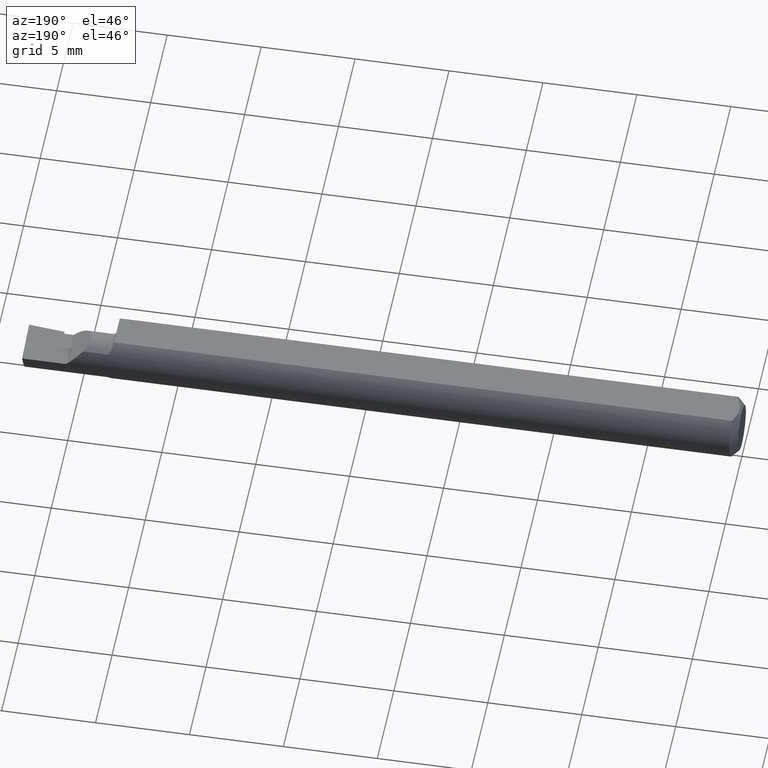
[diagram: clean part render]
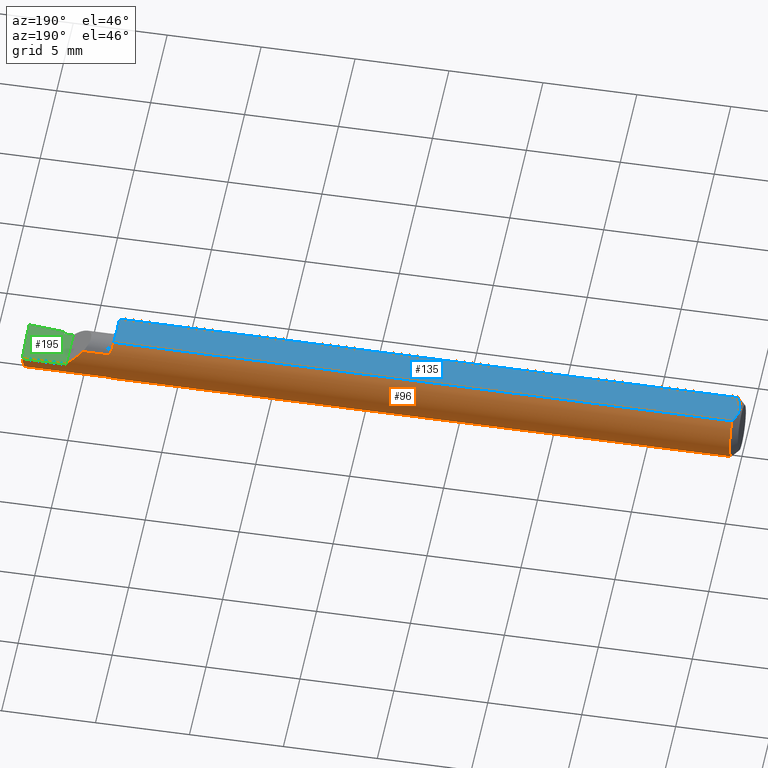
[diagram: same view with three faces highlighted in distinct colors, each labeled with its STEP entity id]
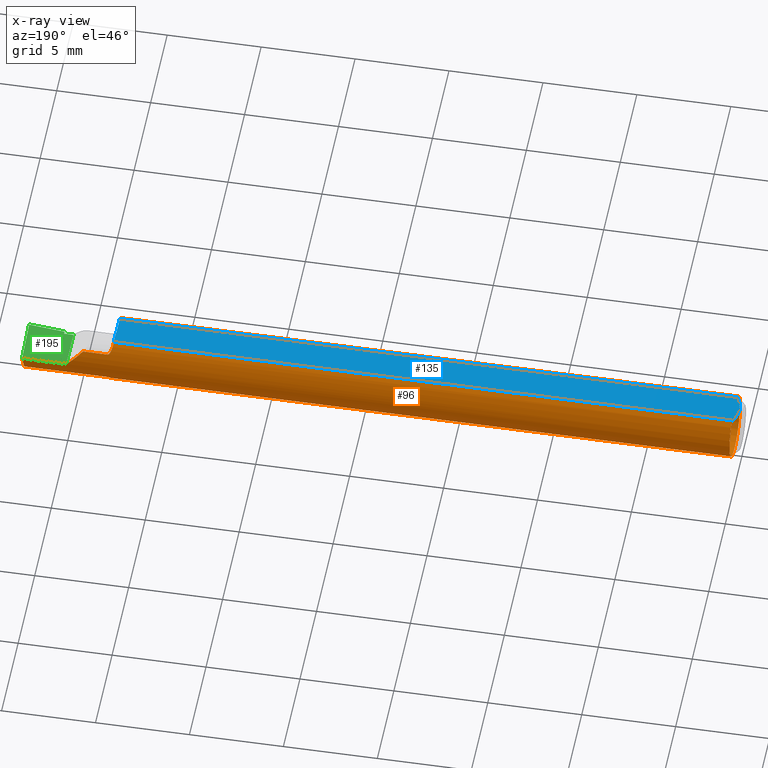
[diagram: x-ray of the same camera — body ghosted, the three highlighted faces saturated]
A machine part, auxiliary view with three faces highlighted in distinct colors.
The next image is the same camera in x-ray (body ghosted, the three faces saturated) — at least one of them is partly hidden behind the body in this view.
Their STEP definitions:

[orange] entity #96 — the highlighted cylindrical surface (edge-blend (fillet) strip) has radius 1.5837 mm, axis along (-1, -0, -0).
#16 = ORIENTED_EDGE ( 'NONE', *, *, #641, .T. ) ;
#20 = DIRECTION ( 'NONE',  ( -1.000000000000000000, -0.000000000000000000, -0.000000000000000000 ) ) ;
#23 = EDGE_CURVE ( 'NONE', #385, #463, #404, .T. ) ;
#24 = CARTESIAN_POINT ( 'NONE',  ( 0.000000000000000000, 0.000000000000000000, 0.000000000000000000 ) ) ;
#30 = DIRECTION ( 'NONE',  ( -1.000000000000000000, 2.845674993400274571E-18, -0.000000000000000000 ) ) ;
#34 = ORIENTED_EDGE ( 'NONE', *, *, #610, .T. ) ;
#40 = AXIS2_PLACEMENT_3D ( 'NONE', #541, #141, #345 ) ;
#50 = CARTESIAN_POINT ( 'NONE',  ( 1.405000000000000249, 0.06234999999999984999, 1.163414459189988826E-17 ) ) ;
#52 = ORIENTED_EDGE ( 'NONE', *, *, #54, .T. ) ;
#53 = DIRECTION ( 'NONE',  ( -1.000000000000000000, -0.000000000000000000, -0.000000000000000000 ) ) ;
#54 = EDGE_CURVE ( 'NONE', #66, #505, #133, .T. ) ;
#58 = CARTESIAN_POINT ( 'NONE',  ( 1.320000000000000062, 0.05267366071428519758, 0.03336177403790670931 ) ) ;
#61 = LINE ( 'NONE', #312, #597 ) ;
#66 = VERTEX_POINT ( 'NONE', #278 ) ;
#74 = VECTOR ( 'NONE', #468, 39.37007874015748143 ) ;
#75 = VECTOR ( 'NONE', #53, 39.37007874015748143 ) ;
#78 = CARTESIAN_POINT ( 'NONE',  ( 1.318537702541799472, 0.05267366071428532942, -0.03336177403790685503 ) ) ;
#79 = FACE_OUTER_BOUND ( 'NONE', #427, .T. ) ;
#92 = CARTESIAN_POINT ( 'NONE',  ( 1.372500000000000275, 0.05267366071428571800, 0.03336177403790620971 ) ) ;
#96 = ADVANCED_FACE ( 'NONE', ( #79 ), #493, .T. ) ;
#107 = EDGE_CURVE ( 'NONE', #185, #438, #525, .T. ) ;
#114 = CARTESIAN_POINT ( 'NONE',  ( 1.316045261487122531, 0.05110091261051565720, 0.03573737896485319754 ) ) ;
#119 = ORIENTED_EDGE ( 'NONE', *, *, #338, .T. ) ;
#125 = B_SPLINE_CURVE_WITH_KNOTS ( 'NONE', 3,
 ( #647, #644, #160, #377, #319, #418, #114, #361, #591, #593 ),
 .UNSPECIFIED., .F., .F.,
 ( 4, 2, 2, 2, 4 ),
 ( 3.634625588760946625E-07, 0.0003783602501879811749, 0.0005673586440025336040, 0.0006618578409098096289, 0.0007563570378170856538 ),
 .UNSPECIFIED. ) ;
#133 = LINE ( 'NONE', #287, #676 ) ;
#134 = ORIENTED_EDGE ( 'NONE', *, *, #450, .T. ) ;
#141 = DIRECTION ( 'NONE',  ( -1.000000000000000000, -0.000000000000000000, -0.000000000000000000 ) ) ;
#151 = ORIENTED_EDGE ( 'NONE', *, *, #344, .T. ) ;
#152 = CARTESIAN_POINT ( 'NONE',  ( 1.317380869089463058, 0.05205930255399779383, -0.03433183488607109701 ) ) ;
#160 = CARTESIAN_POINT ( 'NONE',  ( 1.311047180432317827, 0.04185659023926306677, 0.04646513869620316761 ) ) ;
#162 = VECTOR ( 'NONE', #503, 39.37007874015748143 ) ;
#170 = ORIENTED_EDGE ( 'NONE', *, *, #662, .T. ) ;
#175 = DIRECTION ( 'NONE',  ( 0.000000000000000000, 0.000000000000000000, 1.000000000000000000 ) ) ;
#179 = ORIENTED_EDGE ( 'NONE', *, *, #237, .T. ) ;
#185 = VERTEX_POINT ( 'NONE', #413 ) ;
#202 = CARTESIAN_POINT ( 'NONE',  ( 1.497374644593940651, 0.06234999999999984999, 4.356084699862640356E-19 ) ) ;
#211 = LINE ( 'NONE', #467, #75 ) ;
#237 = EDGE_CURVE ( 'NONE', #381, #272, #671, .T. ) ;
#238 = AXIS2_PLACEMENT_3D ( 'NONE', #372, #375, #535 ) ;
#241 = DIRECTION ( 'NONE',  ( 0.000000000000000000, 0.000000000000000000, 1.000000000000000000 ) ) ;
#249 = CARTESIAN_POINT ( 'NONE',  ( 1.310000000000000497, 0.03531759654985763136, -0.05169891940248810130 ) ) ;
#263 = CARTESIAN_POINT ( 'NONE',  ( 1.310000000000000275, 0.03032991071428571203, -0.05447585718521057163 ) ) ;
#266 = CARTESIAN_POINT ( 'NONE',  ( 0.01500000000000185039, -0.03386738844380016850, 0.05235000000000000070 ) ) ;
#272 = VERTEX_POINT ( 'NONE', #353 ) ;
#278 = CARTESIAN_POINT ( 'NONE',  ( 1.493683825247659858, 0.05267366071428571800, -0.03336177403790620971 ) ) ;
#287 = CARTESIAN_POINT ( 'NONE',  ( 1.372500000000000275, 0.05267366071428571800, -0.03336177403790620971 ) ) ;
#291 = CARTESIAN_POINT ( 'NONE',  ( 0.000000000000000000, 0.03386738844375223462, 0.05234999999999997988 ) ) ;
#309 = CARTESIAN_POINT ( 'NONE',  ( 1.310000000000000275, 0.03032991071428571203, -0.05447585718521057163 ) ) ;
#312 = CARTESIAN_POINT ( 'NONE',  ( 2.249639673992802012E-32, 0.06234999999999999570, 1.836970198721035850E-16 ) ) ;
#313 = ORIENTED_EDGE ( 'NONE', *, *, #554, .F. ) ;
#316 = CARTESIAN_POINT ( 'NONE',  ( 0.01500000000000000465, 0.03386738844375223462, 0.05234999999999997988 ) ) ;
#319 = CARTESIAN_POINT ( 'NONE',  ( 1.313772805890642825, 0.04842073308978434021, 0.03934539127329839125 ) ) ;
#338 = EDGE_CURVE ( 'NONE', #391, #668, #343, .T. ) ;
#343 = LINE ( 'NONE', #291, #162 ) ;
#344 = EDGE_CURVE ( 'NONE', #645, #66, #400, .T. ) ;
#345 = DIRECTION ( 'NONE',  ( 0.000000000000000000, 0.000000000000000000, 1.000000000000000000 ) ) ;
#353 = CARTESIAN_POINT ( 'NONE',  ( 1.371638225962093394, 0.05267366071428571106, 0.03336177403790623053 ) ) ;
#355 = CARTESIAN_POINT ( 'NONE',  ( 1.310579206429430821, 0.03988586008976090919, -0.04823973116775163300 ) ) ;
#361 = CARTESIAN_POINT ( 'NONE',  ( 1.317655921777289851, 0.05218794095652969783, 0.03413037274368479340 ) ) ;
#372 = CARTESIAN_POINT ( 'NONE',  ( 1.310000000000000275, 0.000000000000000000, 0.000000000000000000 ) ) ;
#375 = DIRECTION ( 'NONE',  ( -1.000000000000000000, 2.845674993400274571E-18, -0.000000000000000000 ) ) ;
#377 = CARTESIAN_POINT ( 'NONE',  ( 1.312979226362147145, 0.04686191816083945527, 0.04119888732011498661 ) ) ;
#381 = VERTEX_POINT ( 'NONE', #58 ) ;
#385 = VERTEX_POINT ( 'NONE', #263 ) ;
#391 = VERTEX_POINT ( 'NONE', #316 ) ;
#394 =( BOUNDED_CURVE ( )  B_SPLINE_CURVE ( 3, ( #520, #575, #513, #50 ),
 .UNSPECIFIED., .F., .F. ) 
 B_SPLINE_CURVE_WITH_KNOTS ( ( 4, 4 ),
 ( 1.006202693948343718, 1.570796326794896558 ),
 .UNSPECIFIED. ) 
 CURVE ( )  GEOMETRIC_REPRESENTATION_ITEM ( )  RATIONAL_B_SPLINE_CURVE ( ( 1.000000000000000000, 0.9736121104788254543, 0.9736121104788254543, 1.000000000000000000 ) ) 
 REPRESENTATION_ITEM ( '' )  );
#400 =( BOUNDED_CURVE ( )  B_SPLINE_CURVE ( 3, ( #688, #636, #486, #433 ),
 .UNSPECIFIED., .F., .F. ) 
 B_SPLINE_CURVE_WITH_KNOTS ( ( 4, 4 ),
 ( 4.934903206476676019, 5.499496839323228414 ),
 .UNSPECIFIED. ) 
 CURVE ( )  GEOMETRIC_REPRESENTATION_ITEM ( )  RATIONAL_B_SPLINE_CURVE ( ( 1.000000000000000000, 0.9736121104788255654, 0.9736121104788255654, 1.000000000000000000 ) ) 
 REPRESENTATION_ITEM ( '' )  );
#401 = CARTESIAN_POINT ( 'NONE',  ( 1.320000000000000062, 0.05267366071428517676, -0.03336177403790670931 ) ) ;
#404 = CIRCLE ( 'NONE', #238, 0.06235000000000000264 ) ;
#411 = EDGE_CURVE ( 'NONE', #668, #381, #125, .T. ) ;
#413 = CARTESIAN_POINT ( 'NONE',  ( 0.01500000000000000465, 0.000000000000000000, -0.06235000000000000264 ) ) ;
#415 = CARTESIAN_POINT ( 'NONE',  ( 1.315660490243264924, 0.05075743519649641294, -0.03622883715117829889 ) ) ;
#418 = CARTESIAN_POINT ( 'NONE',  ( 1.315418897882207894, 0.05046130401578123592, 0.03663953430213286178 ) ) ;
#427 = EDGE_LOOP ( 'NONE', ( #134, #151, #52, #34, #449, #16, #528, #313, #119, #599, #179, #170 ) ) ;
#428 = AXIS2_PLACEMENT_3D ( 'NONE', #24, #20, #175 ) ;
#429 = DIRECTION ( 'NONE',  ( 1.000000000000000000, 0.000000000000000000, 0.000000000000000000 ) ) ;
#433 = CARTESIAN_POINT ( 'NONE',  ( 1.493683825247659858, 0.05267366071428571800, -0.03336177403790620971 ) ) ;
#438 = VERTEX_POINT ( 'NONE', #266 ) ;
#449 = ORIENTED_EDGE ( 'NONE', *, *, #23, .T. ) ;
#450 = EDGE_CURVE ( 'NONE', #530, #645, #61, .T. ) ;
#463 = VERTEX_POINT ( 'NONE', #586 ) ;
#467 = CARTESIAN_POINT ( 'NONE',  ( 0.000000000000000000, -0.03386738844375222768, 0.05234999999999997988 ) ) ;
#468 = DIRECTION ( 'NONE',  ( 1.000000000000000000, -2.845674993400274571E-18, 0.000000000000000000 ) ) ;
#486 = CARTESIAN_POINT ( 'NONE',  ( 1.494702925216723877, 0.05903713403021955408, -0.02331472336167227100 ) ) ;
#493 = CYLINDRICAL_SURFACE ( 'NONE', #428, 0.06235000000000000264 ) ;
#502 = CARTESIAN_POINT ( 'NONE',  ( 1.405000000000000249, 0.06234999999999984999, 1.163414459189988826E-17 ) ) ;
#503 = DIRECTION ( 'NONE',  ( 1.000000000000000000, 0.000000000000000000, 0.000000000000000000 ) ) ;
#505 = VERTEX_POINT ( 'NONE', #401 ) ;
#513 = CARTESIAN_POINT ( 'NONE',  ( 1.393107270290912414, 0.06234999999999999570, 0.01189272970908760059 ) ) ;
#520 = CARTESIAN_POINT ( 'NONE',  ( 1.371638225962093394, 0.05267366071428571106, 0.03336177403790623053 ) ) ;
#524 = CARTESIAN_POINT ( 'NONE',  ( 1.313290526241661205, 0.04760738330986988981, -0.04034632413678360119 ) ) ;
#525 = CIRCLE ( 'NONE', #663, 0.06235000000000000264 ) ;
#528 = ORIENTED_EDGE ( 'NONE', *, *, #107, .F. ) ;
#530 = VERTEX_POINT ( 'NONE', #502 ) ;
#535 = DIRECTION ( 'NONE',  ( 0.000000000000000000, -1.000000000000000000, 0.000000000000000000 ) ) ;
#541 = CARTESIAN_POINT ( 'NONE',  ( 0.01500000000000000465, 0.000000000000000000, 0.000000000000000000 ) ) ;
#546 = CARTESIAN_POINT ( 'NONE',  ( 1.320000000000000062, 0.05267366071428517676, -0.03336177403790670931 ) ) ;
#550 = CARTESIAN_POINT ( 'NONE',  ( 0.01500000000000000465, 0.000000000000000000, 0.000000000000000000 ) ) ;
#554 = EDGE_CURVE ( 'NONE', #391, #185, #570, .T. ) ;
#567 = CARTESIAN_POINT ( 'NONE',  ( 1.312480429362908652, 0.04577347211771953805, -0.04242545815719123148 ) ) ;
#570 = CIRCLE ( 'NONE', #40, 0.06235000000000000264 ) ;
#571 = CARTESIAN_POINT ( 'NONE',  ( 1.310106967748909668, 0.03386738844375188073, 0.05235000000000000070 ) ) ;
#575 = CARTESIAN_POINT ( 'NONE',  ( 1.381685276638327187, 0.05903713403021954020, 0.02331472336167230916 ) ) ;
#578 = CARTESIAN_POINT ( 'NONE',  ( 1.315004130572074104, 0.05000376612213295463, -0.03726710953164800305 ) ) ;
#586 = CARTESIAN_POINT ( 'NONE',  ( 1.310000000000000275, -0.03386738844380023788, 0.05235000000000000070 ) ) ;
#591 = CARTESIAN_POINT ( 'NONE',  ( 1.318720799723181569, 0.05267366071440092445, 0.03336177403772633276 ) ) ;
#593 = CARTESIAN_POINT ( 'NONE',  ( 1.320000000000000062, 0.05267366071428519758, 0.03336177403790670931 ) ) ;
#597 = VECTOR ( 'NONE', #429, 39.37007874015748143 ) ;
#599 = ORIENTED_EDGE ( 'NONE', *, *, #411, .T. ) ;
#609 = DIRECTION ( 'NONE',  ( -1.000000000000000000, -0.000000000000000000, -0.000000000000000000 ) ) ;
#610 = EDGE_CURVE ( 'NONE', #505, #385, #623, .T. ) ;
#623 = B_SPLINE_CURVE_WITH_KNOTS ( 'NONE', 3,
 ( #546, #78, #152, #415, #578, #524, #567, #355, #249, #309 ),
 .UNSPECIFIED., .F., .F.,
 ( 4, 2, 2, 2, 4 ),
 ( 1.961463023632538367E-07, 0.0001095081557634882172, 0.0002188201652246131749, 0.0004374441841468630632, 0.0008746922219913680439 ),
 .UNSPECIFIED. ) ;
#636 = CARTESIAN_POINT ( 'NONE',  ( 1.495966542526107945, 0.06235000000000000264, -0.01189272970908757283 ) ) ;
#641 = EDGE_CURVE ( 'NONE', #463, #438, #211, .T. ) ;
#644 = CARTESIAN_POINT ( 'NONE',  ( 1.310367046603136298, 0.03808730168870257116, 0.04961996292138169673 ) ) ;
#645 = VERTEX_POINT ( 'NONE', #202 ) ;
#647 = CARTESIAN_POINT ( 'NONE',  ( 1.310106967748909668, 0.03386738844375188073, 0.05235000000000000070 ) ) ;
#662 = EDGE_CURVE ( 'NONE', #272, #530, #394, .T. ) ;
#663 = AXIS2_PLACEMENT_3D ( 'NONE', #550, #609, #241 ) ;
#668 = VERTEX_POINT ( 'NONE', #571 ) ;
#671 = LINE ( 'NONE', #92, #74 ) ;
#676 = VECTOR ( 'NONE', #30, 39.37007874015748143 ) ;
#688 = CARTESIAN_POINT ( 'NONE',  ( 1.497374644593940651, 0.06234999999999984999, 4.356084699862640356E-19 ) ) ;

[blue] entity #135 — the highlighted planar face has unit normal (0, -0, -1).
#3 = VERTEX_POINT ( 'NONE', #11 ) ;
#11 = CARTESIAN_POINT ( 'NONE',  ( 0.004999999999989931769, 7.898418181085889318E-16, 0.05235000000000000070 ) ) ;
#15 = FACE_OUTER_BOUND ( 'NONE', #388, .T. ) ;
#25 = CARTESIAN_POINT ( 'NONE',  ( 0.004999999999989931769, 7.898418181085889318E-16, 0.05235000000000000070 ) ) ;
#31 = EDGE_CURVE ( 'NONE', #458, #668, #504, .T. ) ;
#53 = DIRECTION ( 'NONE',  ( -1.000000000000000000, -0.000000000000000000, -0.000000000000000000 ) ) ;
#55 = CARTESIAN_POINT ( 'NONE',  ( 0.009678036133109307534, -0.02325481837211496039, 0.05235000000000000070 ) ) ;
#69 = CARTESIAN_POINT ( 'NONE',  ( 1.310256932871702862, 0.02911433999418734653, 0.05235000000000000070 ) ) ;
#75 = VECTOR ( 'NONE', #53, 39.37007874015748143 ) ;
#101 = B_SPLINE_CURVE_WITH_KNOTS ( 'NONE', 3,
 ( #221, #259, #55, #156, #214, #167 ),
 .UNSPECIFIED., .F., .F.,
 ( 4, 2, 4 ),
 ( 0.002133667072902290657, 0.002585433046183636171, 0.003037199019464981685 ),
 .UNSPECIFIED. ) ;
#135 = ADVANCED_FACE ( 'NONE', ( #15 ), #555, .F. ) ;
#156 = CARTESIAN_POINT ( 'NONE',  ( 0.006057557792978140489, -0.01187252718384441616, 0.05234999999999998682 ) ) ;
#162 = VECTOR ( 'NONE', #503, 39.37007874015748143 ) ;
#166 = EDGE_CURVE ( 'NONE', #3, #391, #584, .T. ) ;
#167 = CARTESIAN_POINT ( 'NONE',  ( 0.004999999999989931769, 7.898418181085889318E-16, 0.05235000000000000070 ) ) ;
#168 = ORIENTED_EDGE ( 'NONE', *, *, #31, .T. ) ;
#184 = CARTESIAN_POINT ( 'NONE',  ( 0.01500000000000000465, 0.03386738844375223462, 0.05234999999999997988 ) ) ;
#190 = ORIENTED_EDGE ( 'NONE', *, *, #166, .F. ) ;
#192 = AXIS2_PLACEMENT_3D ( 'NONE', #234, #658, #339 ) ;
#211 = LINE ( 'NONE', #467, #75 ) ;
#214 = CARTESIAN_POINT ( 'NONE',  ( 0.004999999999998879473, -0.005957634400466955450, 0.05235000000000000070 ) ) ;
#215 = VECTOR ( 'NONE', #514, 39.37007874015748143 ) ;
#221 = CARTESIAN_POINT ( 'NONE',  ( 0.01500000000000185039, -0.03386738844380016850, 0.05235000000000000070 ) ) ;
#222 = CARTESIAN_POINT ( 'NONE',  ( 1.310419621069756513, 0.02436103386466079157, 0.05234999999999998682 ) ) ;
#234 = CARTESIAN_POINT ( 'NONE',  ( 1.500000000000000222, 0.1123499999999999915, 0.05234999999999998682 ) ) ;
#235 = CARTESIAN_POINT ( 'NONE',  ( 0.004999999999999268051, 0.005945714695019511074, 0.05235000000000000070 ) ) ;
#259 = CARTESIAN_POINT ( 'NONE',  ( 0.01216137397042175820, -0.02864146636719541034, 0.05235000000000000070 ) ) ;
#266 = CARTESIAN_POINT ( 'NONE',  ( 0.01500000000000185039, -0.03386738844380016850, 0.05235000000000000070 ) ) ;
#291 = CARTESIAN_POINT ( 'NONE',  ( 0.000000000000000000, 0.03386738844375223462, 0.05234999999999997988 ) ) ;
#292 = EDGE_CURVE ( 'NONE', #463, #458, #461, .T. ) ;
#303 = CARTESIAN_POINT ( 'NONE',  ( 1.310000000000000275, 0.1123499999999999915, 0.05234999999999998682 ) ) ;
#308 = ORIENTED_EDGE ( 'NONE', *, *, #641, .F. ) ;
#316 = CARTESIAN_POINT ( 'NONE',  ( 0.01500000000000000465, 0.03386738844375223462, 0.05234999999999997988 ) ) ;
#338 = EDGE_CURVE ( 'NONE', #391, #668, #343, .T. ) ;
#339 = DIRECTION ( 'NONE',  ( 0.000000000000000000, 1.000000000000000000, -7.598598113218357399E-17 ) ) ;
#340 = CARTESIAN_POINT ( 'NONE',  ( 0.009669996313769784607, 0.02323004575534281385, 0.05234999999999998682 ) ) ;
#343 = LINE ( 'NONE', #291, #162 ) ;
#359 = ORIENTED_EDGE ( 'NONE', *, *, #376, .F. ) ;
#366 = CARTESIAN_POINT ( 'NONE',  ( 1.310000000000000275, 0.005371200864417923979, 0.05235000000000000070 ) ) ;
#376 = EDGE_CURVE ( 'NONE', #438, #3, #101, .T. ) ;
#388 = EDGE_LOOP ( 'NONE', ( #403, #168, #500, #190, #359, #308 ) ) ;
#391 = VERTEX_POINT ( 'NONE', #316 ) ;
#403 = ORIENTED_EDGE ( 'NONE', *, *, #292, .T. ) ;
#438 = VERTEX_POINT ( 'NONE', #266 ) ;
#441 = CARTESIAN_POINT ( 'NONE',  ( 1.310106967748909668, 0.03386738844375188073, 0.05235000000000000070 ) ) ;
#448 = CARTESIAN_POINT ( 'NONE',  ( 0.006064493299689842180, 0.01189382783781397189, 0.05235000000000000070 ) ) ;
#458 = VERTEX_POINT ( 'NONE', #639 ) ;
#461 = LINE ( 'NONE', #303, #215 ) ;
#463 = VERTEX_POINT ( 'NONE', #586 ) ;
#467 = CARTESIAN_POINT ( 'NONE',  ( 0.000000000000000000, -0.03386738844375222768, 0.05234999999999997988 ) ) ;
#483 = CARTESIAN_POINT ( 'NONE',  ( 1.310282193164910014, 0.01486379476360979134, 0.05235000000000000070 ) ) ;
#500 = ORIENTED_EDGE ( 'NONE', *, *, #338, .F. ) ;
#503 = DIRECTION ( 'NONE',  ( 1.000000000000000000, 0.000000000000000000, 0.000000000000000000 ) ) ;
#504 = B_SPLINE_CURVE_WITH_KNOTS ( 'NONE', 3,
 ( #366, #581, #483, #222, #69, #441 ),
 .UNSPECIFIED., .F., .F.,
 ( 4, 2, 4 ),
 ( 0.0001373866395655649528, 0.0004989949943567614267, 0.0008606033491479579819 ),
 .UNSPECIFIED. ) ;
#514 = DIRECTION ( 'NONE',  ( 2.845674993400274571E-18, 1.000000000000000000, -7.598598113218357399E-17 ) ) ;
#555 = PLANE ( 'NONE',  #192 ) ;
#571 = CARTESIAN_POINT ( 'NONE',  ( 1.310106967748909668, 0.03386738844375188073, 0.05235000000000000070 ) ) ;
#581 = CARTESIAN_POINT ( 'NONE',  ( 1.310000000000000497, 0.01011697778717750816, 0.05235000000000000070 ) ) ;
#584 = B_SPLINE_CURVE_WITH_KNOTS ( 'NONE', 3,
 ( #25, #235, #448, #340, #611, #184 ),
 .UNSPECIFIED., .F., .F.,
 ( 4, 2, 4 ),
 ( 0.003037199019464981685, 0.003488061124369676216, 0.003938923229274370746 ),
 .UNSPECIFIED. ) ;
#586 = CARTESIAN_POINT ( 'NONE',  ( 1.310000000000000275, -0.03386738844380023788, 0.05235000000000000070 ) ) ;
#611 = CARTESIAN_POINT ( 'NONE',  ( 0.01218518006020415795, 0.02868529347538067639, 0.05235000000000000070 ) ) ;
#639 = CARTESIAN_POINT ( 'NONE',  ( 1.310000000000000275, 0.005371200864417923979, 0.05235000000000000070 ) ) ;
#641 = EDGE_CURVE ( 'NONE', #463, #438, #211, .T. ) ;
#658 = DIRECTION ( 'NONE',  ( 0.000000000000000000, -7.598598113218357399E-17, -1.000000000000000000 ) ) ;
#668 = VERTEX_POINT ( 'NONE', #571 ) ;

[green] entity #195 — the highlighted planar face has unit normal (-0, 0, -1).
#5 = VECTOR ( 'NONE', #275, 39.37007874015747433 ) ;
#14 = CARTESIAN_POINT ( 'NONE',  ( 1.425000000000000266, -0.02842832138518472385, 9.604153102725926148E-18 ) ) ;
#44 = LINE ( 'NONE', #253, #480 ) ;
#59 = ORIENTED_EDGE ( 'NONE', *, *, #128, .T. ) ;
#61 = LINE ( 'NONE', #312, #597 ) ;
#77 = LINE ( 'NONE', #489, #5 ) ;
#128 = EDGE_CURVE ( 'NONE', #176, #645, #77, .T. ) ;
#137 = EDGE_LOOP ( 'NONE', ( #562, #59, #254, #487, #252, #447 ) ) ;
#172 = VECTOR ( 'NONE', #322, 39.37007874015748143 ) ;
#176 = VERTEX_POINT ( 'NONE', #517 ) ;
#195 = ADVANCED_FACE ( 'NONE', ( #198 ), #565, .F. ) ;
#198 = FACE_OUTER_BOUND ( 'NONE', #137, .T. ) ;
#202 = CARTESIAN_POINT ( 'NONE',  ( 1.497374644593940651, 0.06234999999999984999, 4.356084699862640356E-19 ) ) ;
#242 = LINE ( 'NONE', #405, #392 ) ;
#252 = ORIENTED_EDGE ( 'NONE', *, *, #315, .T. ) ;
#253 = CARTESIAN_POINT ( 'NONE',  ( -1.281976584526598441E-19, -0.02264999999999999306, 1.836970198721035850E-16 ) ) ;
#254 = ORIENTED_EDGE ( 'NONE', *, *, #450, .F. ) ;
#275 = DIRECTION ( 'NONE',  ( -0.02677973311238899048, 0.9996413586354004899, 3.644900082579197311E-18 ) ) ;
#281 = VECTOR ( 'NONE', #379, 39.37007874015748854 ) ;
#312 = CARTESIAN_POINT ( 'NONE',  ( 2.249639673992802012E-32, 0.06234999999999999570, 1.836970198721035850E-16 ) ) ;
#315 = EDGE_CURVE ( 'NONE', #399, #673, #44, .T. ) ;
#322 = DIRECTION ( 'NONE',  ( -0.000000000000000000, 1.000000000000000000, -0.000000000000000000 ) ) ;
#342 = CARTESIAN_POINT ( 'NONE',  ( 1.520449954079481358, -0.03761910661399675559, -2.504397080614711889E-18 ) ) ;
#364 = CARTESIAN_POINT ( 'NONE',  ( 1.405000000000000249, -0.2500000000000000555, 1.163414459189988826E-17 ) ) ;
#379 = DIRECTION ( 'NONE',  ( 0.9953961983671787417, -0.09584575252022417557, -1.240050636994884659E-16 ) ) ;
#392 = VECTOR ( 'NONE', #556, 39.37007874015748143 ) ;
#399 = VERTEX_POINT ( 'NONE', #473 ) ;
#405 = CARTESIAN_POINT ( 'NONE',  ( 1.425000000000000266, -0.2500000000000000555, 9.184850993605165694E-18 ) ) ;
#429 = DIRECTION ( 'NONE',  ( 1.000000000000000000, 0.000000000000000000, 0.000000000000000000 ) ) ;
#436 = EDGE_CURVE ( 'NONE', #399, #530, #529, .T. ) ;
#447 = ORIENTED_EDGE ( 'NONE', *, *, #492, .T. ) ;
#450 = EDGE_CURVE ( 'NONE', #530, #645, #61, .T. ) ;
#473 = CARTESIAN_POINT ( 'NONE',  ( 1.405000000000000249, -0.02265000000000006591, 1.163414459189988826E-17 ) ) ;
#480 = VECTOR ( 'NONE', #681, 39.37007874015748143 ) ;
#484 = EDGE_CURVE ( 'NONE', #508, #176, #612, .T. ) ;
#487 = ORIENTED_EDGE ( 'NONE', *, *, #436, .F. ) ;
#489 = CARTESIAN_POINT ( 'NONE',  ( 1.505738177106642706, -0.2498462780174709463, -7.027240226590635118E-19 ) ) ;
#492 = EDGE_CURVE ( 'NONE', #673, #508, #242, .T. ) ;
#502 = CARTESIAN_POINT ( 'NONE',  ( 1.405000000000000249, 0.06234999999999984999, 1.163414459189988826E-17 ) ) ;
#508 = VERTEX_POINT ( 'NONE', #14 ) ;
#517 = CARTESIAN_POINT ( 'NONE',  ( 1.500000000000000222, -0.03565000000000011909, 8.537024980200822558E-18 ) ) ;
#529 = LINE ( 'NONE', #364, #172 ) ;
#530 = VERTEX_POINT ( 'NONE', #502 ) ;
#556 = DIRECTION ( 'NONE',  ( -2.845674993400274571E-18, -1.000000000000000000, 3.484946772081324441E-34 ) ) ;
#561 = DIRECTION ( 'NONE',  ( -1.000000000000000000, 0.000000000000000000, 1.224646799147357645E-16 ) ) ;
#562 = ORIENTED_EDGE ( 'NONE', *, *, #484, .T. ) ;
#565 = PLANE ( 'NONE',  #583 ) ;
#583 = AXIS2_PLACEMENT_3D ( 'NONE', #628, #625, #561 ) ;
#597 = VECTOR ( 'NONE', #429, 39.37007874015748143 ) ;
#612 = LINE ( 'NONE', #342, #281 ) ;
#625 = DIRECTION ( 'NONE',  ( -1.224646799147357645E-16, 0.000000000000000000, -1.000000000000000000 ) ) ;
#628 = CARTESIAN_POINT ( 'NONE',  ( 1.500000000000000222, -0.2500000000000000555, 0.000000000000000000 ) ) ;
#638 = CARTESIAN_POINT ( 'NONE',  ( 1.425000000000000266, -0.02264999999999999653, 0.000000000000000000 ) ) ;
#645 = VERTEX_POINT ( 'NONE', #202 ) ;
#673 = VERTEX_POINT ( 'NONE', #638 ) ;
#681 = DIRECTION ( 'NONE',  ( 1.000000000000000000, -2.845674993400274571E-18, 0.000000000000000000 ) ) ;